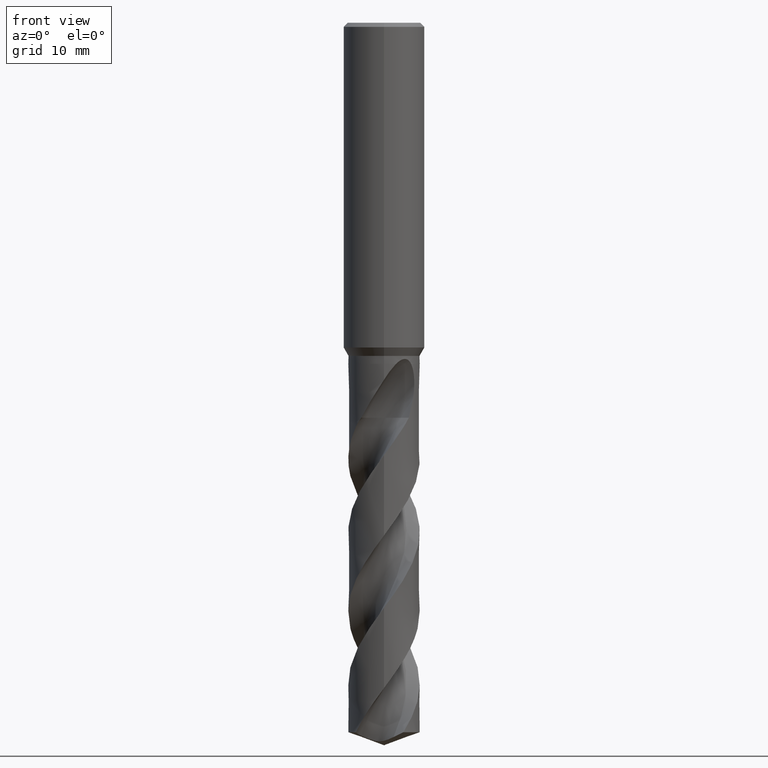
[diagram: clean part render]
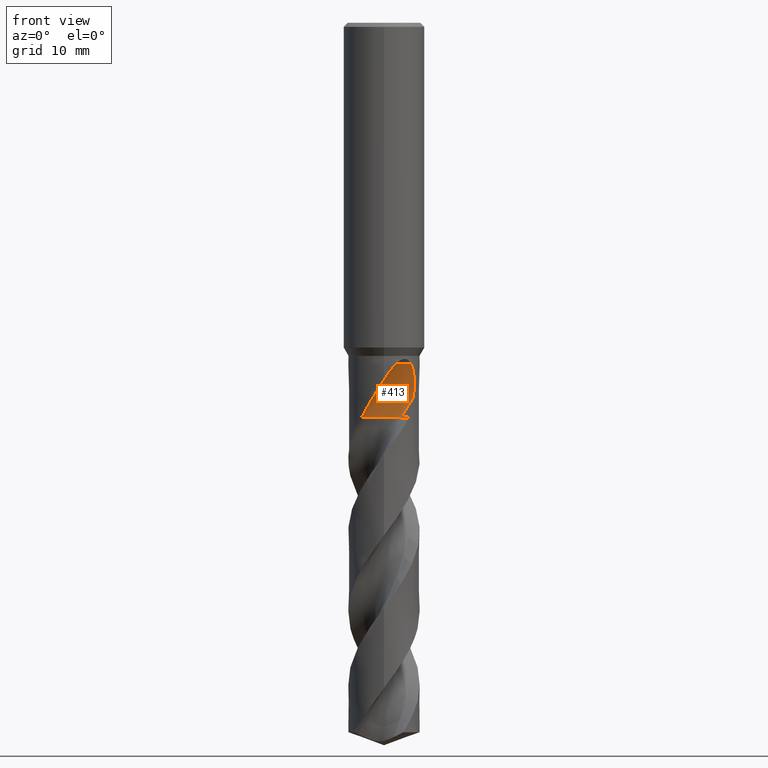
[diagram: same view with one face highlighted and labeled with its STEP entity id]
A machine part, front view. The second image highlights one B-rep face of the part: STEP entity #413.
In plain terms, the highlighted face is a SurfaceOfRevolution surface.
Its self-contained STEP definition (entity closure, byte-faithful):
#295=EDGE_CURVE('',#401,#631,#790,.T.);
#303=EDGE_CURVE('',#549,#583,#798,.T.);
#401=VERTEX_POINT('',#905);
#413=ADVANCED_FACE('',(#918),#919,.F.);
#415=EDGE_CURVE('',#631,#451,#921,.T.);
#451=VERTEX_POINT('',#961);
#535=VERTEX_POINT('',#1050);
#549=VERTEX_POINT('',#1064);
#553=EDGE_CURVE('',#583,#451,#1068,.T.);
#565=EDGE_CURVE('',#535,#621,#1081,.T.);
#571=EDGE_CURVE('',#621,#549,#1087,.T.);
#583=VERTEX_POINT('',#1100);
#601=EDGE_CURVE('',#535,#401,#1121,.T.);
#621=VERTEX_POINT('',#1142);
#631=VERTEX_POINT('',#1152);
#790=CIRCLE('',#1429,2.93333333);
#798=B_SPLINE_CURVE_WITH_KNOTS('',3,(#1494,#1495,#1496,#1497,#1498,#1499,#1500,#1501,#1502,#1503,#1504,#1505),.UNSPECIFIED.,.F.,.F.,(4,2,2,2,2,4),(0.0,0.956282617624597,1.83005544775623,2.71079653608657,3.25686361524105,3.82634129944121),.UNSPECIFIED.);
#905=CARTESIAN_POINT('',(0.353185353426614,-1.34132505732984,-48.6578));
#918=FACE_OUTER_BOUND('',#2855,.T.);
#919=SURFACE_OF_REVOLUTION('',#2856,#2857);
#921=CIRCLE('',#2860,19.1191435449186);
#961=CARTESIAN_POINT('',(3.57993875328587,-2.55797593519678,-46.2485858172271));
#1050=CARTESIAN_POINT('',(-2.80371770920414,-3.39093144555015,-48.6578));
#1064=CARTESIAN_POINT('',(1.4995676485081,-4.13647396674364,-42.0));
#1068=B_SPLINE_CURVE_WITH_KNOTS('',3,(#3805,#3806,#3807,#3808,#3809,#3810,#3811,#3812),.UNSPECIFIED.,.F.,.F.,(4,2,2,4),(0.0,0.824741990477597,1.97805505681341,3.07378685117048),.UNSPECIFIED.);
#1081=B_SPLINE_CURVE_WITH_KNOTS('',3,(#3826,#3827,#3828,#3829,#3830,#3831,#3832,#3833,#3834,#3835,#3836,#3837,#3838,#3839),.UNSPECIFIED.,.F.,.F.,(4,2,2,2,2,2,4),(0.0,2.15576154881917,3.33284950966375,4.39898395879411,5.63755759780335,7.1253560673268,7.89111209973673),.UNSPECIFIED.);
#1087=B_SPLINE_CURVE_WITH_KNOTS('',3,(#3849,#3850,#3851,#3852,#3853,#3854,#3855,#3856,#3857,#3858,#3859,#3860,#3861,#3862),.UNSPECIFIED.,.F.,.F.,(4,2,2,2,2,2,4),(0.0,2.15576154881917,3.33284950966375,4.39898395879411,5.63755759780335,7.1253560673268,7.89111209973673),.UNSPECIFIED.);
#1100=CARTESIAN_POINT('',(3.33358693144173,-2.87164032924058,-42.0));
#1121=CIRCLE('',#4583,2.93333333);
#1142=CARTESIAN_POINT('',(1.30211682229816E-012,-4.39990436294101,-43.9807111286106));
#1152=CARTESIAN_POINT('',(2.07417988905281,-2.1791534409472,-48.6578));
#1429=AXIS2_PLACEMENT_3D('',#5273,#5274,#5275);
#1494=CARTESIAN_POINT('',(1.37240712519495,-4.4499,-42.0));
#1495=CARTESIAN_POINT('',(1.47261664998567,-4.14730035524698,-42.0));
#1496=CARTESIAN_POINT('',(1.62600246707384,-3.86735149607129,-41.9999999999875));
#1497=CARTESIAN_POINT('',(2.0249823032993,-3.40766107195267,-41.9999999999875));
#1498=CARTESIAN_POINT('',(2.25462145756228,-3.22950054938286,-42.0000000000007));
#1499=CARTESIAN_POINT('',(2.77705059324489,-2.97004095884365,-42.0000000000007));
#1500=CARTESIAN_POINT('',(3.06097264737726,-2.89411186290925,-42.0000000000001));
#1501=CARTESIAN_POINT('',(3.53426626722658,-2.85496235740067,-42.0000000000001));
#1502=CARTESIAN_POINT('',(3.71643629393764,-2.86004288335262,-42.0));
#1503=CARTESIAN_POINT('',(4.08487847230587,-2.90729210649029,-42.0));
#1504=CARTESIAN_POINT('',(4.27006535935376,-2.95091103145618,-42.0));
#1505=CARTESIAN_POINT('',(4.4499,-3.01132854258824,-42.0));
#2855=EDGE_LOOP('',(#5425,#5426,#5427,#5428,#5429,#5430,#5431));
#2856=(B_SPLINE_CURVE(3,(#5433,#5434,#5435,#5436,#5437,#5438,#5439,#5440,#5441),.UNSPECIFIED.,.F.,.F.)B_SPLINE_CURVE_WITH_KNOTS((4,1,3,1,4),(-2.85637477769835,-2.55359021676958,-2.2508056558408,-1.94802109491203,-1.64523653398325),.UNSPECIFIED.)RATIONAL_B_SPLINE_CURVE((1.09167849033683,1.03055949677894,0.969440503221056,1.03055949677894,1.09167849033683,1.03055949677894,0.969440503221056,1.03055949677894,1.09167849033683))BOUNDED_CURVE()REPRESENTATION_ITEM('')GEOMETRIC_REPRESENTATION_ITEM()CURVE());
#2857=AXIS1_PLACEMENT('',#5448,#5449);
#2860=AXIS2_PLACEMENT_3D('',#5450,#5451,#5452);
#3805=CARTESIAN_POINT('',(3.33358693144173,-2.87164032924058,-42.0));
#3806=CARTESIAN_POINT('',(3.44229852524517,-2.74544157619765,-42.2187084126272));
#3807=CARTESIAN_POINT('',(3.52798305469884,-2.63150193611116,-42.4905439124316));
#3808=CARTESIAN_POINT('',(3.68182194532072,-2.41401261591024,-43.2390090680116));
#3809=CARTESIAN_POINT('',(3.73286762146872,-2.32913956487914,-43.7681043249714));
#3810=CARTESIAN_POINT('',(3.73917799721829,-2.31899944088825,-44.9217496596131));
#3811=CARTESIAN_POINT('',(3.70203852532112,-2.38709221802847,-45.5541228590302));
#3812=CARTESIAN_POINT('',(3.57993875328587,-2.55797593519678,-46.2485858172271));
#3826=CARTESIAN_POINT('',(-2.80371770920414,-3.39093144555015,-48.6578));
#3827=CARTESIAN_POINT('',(-2.51348316595106,-3.63090379841183,-48.0457994123778));
#3828=CARTESIAN_POINT('',(-2.17977653953126,-3.84422464693483,-47.4752173929099));
#3829=CARTESIAN_POINT('',(-1.59788979826613,-4.10569330854761,-46.522027081619));
#3830=CARTESIAN_POINT('',(-1.38849970313668,-4.18090785448242,-46.1866643448758));
#3831=CARTESIAN_POINT('',(-0.98314795699084,-4.29331775903562,-45.5374938248998));
#3832=CARTESIAN_POINT('',(-0.788996004087881,-4.33303177861169,-45.2267113355813));
#3833=CARTESIAN_POINT('',(-0.368741122724588,-4.39034807618537,-44.5568990269009));
#3834=CARTESIAN_POINT('',(-0.139127374482278,-4.40380421035895,-44.1926259639667));
#3835=CARTESIAN_POINT('',(0.370784913247248,-4.3930775267784,-43.4133298508399));
#3836=CARTESIAN_POINT('',(0.673110510762586,-4.35990253359284,-42.9699046527819));
#3837=CARTESIAN_POINT('',(1.14616479019226,-4.25119237186679,-42.3766129955495));
#3838=CARTESIAN_POINT('',(1.31944426832932,-4.20177327874593,-42.1764895361742));
#3839=CARTESIAN_POINT('',(1.49956764850811,-4.13647396674363,-42.0));
#3849=CARTESIAN_POINT('',(-2.80371770920414,-3.39093144555015,-48.6578));
#3850=CARTESIAN_POINT('',(-2.51348316595106,-3.63090379841183,-48.0457994123778));
#3851=CARTESIAN_POINT('',(-2.17977653953126,-3.84422464693483,-47.4752173929099));
#3852=CARTESIAN_POINT('',(-1.59788979826613,-4.10569330854761,-46.522027081619));
#3853=CARTESIAN_POINT('',(-1.38849970313668,-4.18090785448242,-46.1866643448758));
#3854=CARTESIAN_POINT('',(-0.98314795699084,-4.29331775903562,-45.5374938248998));
#3855=CARTESIAN_POINT('',(-0.788996004087881,-4.33303177861169,-45.2267113355813));
#3856=CARTESIAN_POINT('',(-0.368741122724588,-4.39034807618537,-44.5568990269009));
#3857=CARTESIAN_POINT('',(-0.139127374482278,-4.40380421035895,-44.1926259639667));
#3858=CARTESIAN_POINT('',(0.370784913247248,-4.3930775267784,-43.4133298508399));
#3859=CARTESIAN_POINT('',(0.673110510762586,-4.35990253359284,-42.9699046527819));
#3860=CARTESIAN_POINT('',(1.14616479019226,-4.25119237186679,-42.3766129955495));
#3861=CARTESIAN_POINT('',(1.31944426832932,-4.20177327874593,-42.1764895361742));
#3862=CARTESIAN_POINT('',(1.49956764850811,-4.13647396674363,-42.0));
#4583=AXIS2_PLACEMENT_3D('',#5645,#5646,#5647);
#5273=CARTESIAN_POINT('',(-1.71269515501595E-005,-4.25331620304845,-48.6578));
#5274=DIRECTION('',(-0.0,0.0,-1.0));
#5275=DIRECTION('',(-0.707100942428954,-0.70711261989593,0.0));
#5425=ORIENTED_EDGE('',*,*,#553,.F.);
#5426=ORIENTED_EDGE('',*,*,#303,.F.);
#5427=ORIENTED_EDGE('',*,*,#571,.F.);
#5428=ORIENTED_EDGE('',*,*,#565,.F.);
#5429=ORIENTED_EDGE('',*,*,#601,.T.);
#5430=ORIENTED_EDGE('',*,*,#295,.T.);
#5431=ORIENTED_EDGE('',*,*,#415,.T.);
#5433=CARTESIAN_POINT('',(2.07417988905281,-2.1791534409472,-48.6578));
#5434=CARTESIAN_POINT('',(1.66791224952913,-1.77287909208873,-48.6578));
#5435=CARTESIAN_POINT('',(0.611500645605301,-1.19559870064148,-48.6578));
#5436=CARTESIAN_POINT('',(-0.585677398980433,-1.32218012430347,-48.6578));
#5437=CARTESIAN_POINT('',(-1.11694950665096,-1.54095441227128,-48.6578));
#5438=CARTESIAN_POINT('',(-1.64822161432149,-1.75972870023909,-48.6578));
#5439=CARTESIAN_POINT('',(-2.5873833531548,-2.51287765998479,-48.6578));
#5440=CARTESIAN_POINT('',(-2.93095433290254,-3.66666148251377,-48.6578));
#5441=CARTESIAN_POINT('',(-2.93332547722847,-4.2412105397222,-48.6578));
#5448=CARTESIAN_POINT('',(1.49154508875708,-21.26666665,-49.5900156804732));
#5449=DIRECTION('',(-0.847998304005088,0.0,0.52999894000318));
#5450=CARTESIAN_POINT('',(1.49154508875708,-21.26666665,-49.5900156804732));
#5451=DIRECTION('',(0.847998304005088,-1.94380786969579E-017,-0.52999894000318));
#5452=DIRECTION('',(0.0535598124395258,0.994880693103216,0.0856956999032413));
#5645=CARTESIAN_POINT('',(-1.71269515501595E-005,-4.25331620304845,-48.6578));
#5646=DIRECTION('',(-0.0,0.0,-1.0));
#5647=DIRECTION('',(-0.707100942428954,-0.70711261989593,0.0));